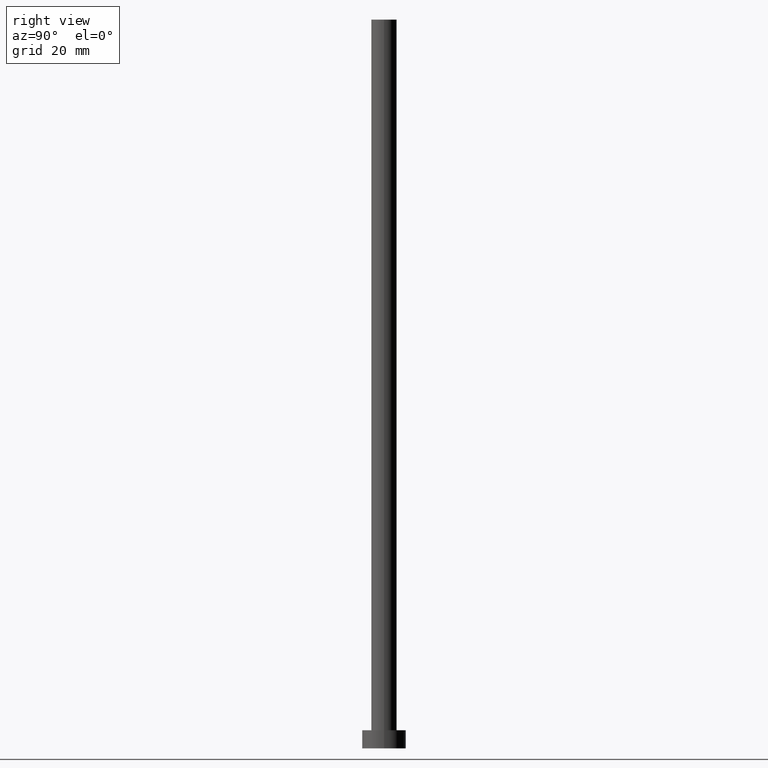
[diagram: clean part render]
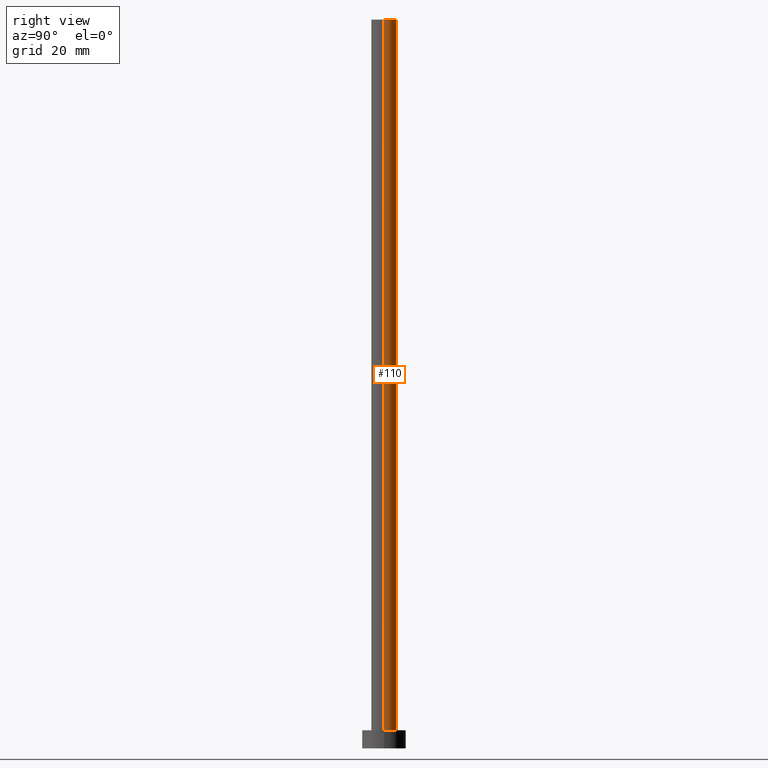
[diagram: same view with one face highlighted and labeled with its STEP entity id]
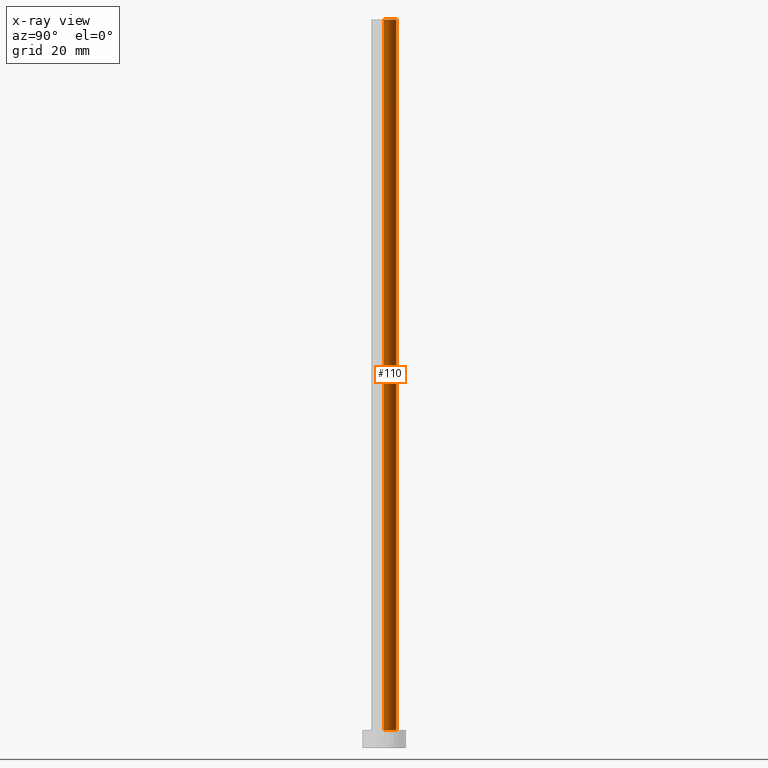
[diagram: x-ray of the same camera — body ghosted, the highlighted face saturated]
A machine part, right view. The second image highlights one B-rep face of the part: STEP entity #110.
The next image is the same camera in x-ray: the body ghosted, the highlighted face saturated — about 0% of this face is hidden behind the body in this view.
In plain terms, the highlighted cylindrical surface (edge-blend (fillet) strip) has radius 3.5 mm, axis along (-0, -0, -1).
Its self-contained STEP definition (entity closure, byte-faithful):
#8 = ORIENTED_EDGE ( 'NONE', *, *, #114, .T. ) ;
#23 = DIRECTION ( 'NONE',  ( 0.000000000000000000, 0.000000000000000000, 1.000000000000000000 ) ) ;
#24 = DIRECTION ( 'NONE',  ( -0.000000000000000000, -0.000000000000000000, -1.000000000000000000 ) ) ;
#35 = DIRECTION ( 'NONE',  ( 1.000000000000000000, 0.000000000000000000, 0.000000000000000000 ) ) ;
#42 = DIRECTION ( 'NONE',  ( -0.000000000000000000, -0.000000000000000000, -1.000000000000000000 ) ) ;
#45 = VECTOR ( 'NONE', #138, 1000.000000000000000 ) ;
#51 = CARTESIAN_POINT ( 'NONE',  ( 0.000000000000000000, 0.000000000000000000, 5.000000000000000000 ) ) ;
#53 = DIRECTION ( 'NONE',  ( 0.000000000000000000, 0.000000000000000000, 1.000000000000000000 ) ) ;
#56 = AXIS2_PLACEMENT_3D ( 'NONE', #245, #23, #225 ) ;
#58 = EDGE_CURVE ( 'NONE', #68, #133, #186, .T. ) ;
#60 = ORIENTED_EDGE ( 'NONE', *, *, #67, .F. ) ;
#61 = CARTESIAN_POINT ( 'NONE',  ( -3.500000000000000000, 0.000000000000000000, 200.0000000000000000 ) ) ;
#67 = EDGE_CURVE ( 'NONE', #131, #133, #219, .T. ) ;
#68 = VERTEX_POINT ( 'NONE', #218 ) ;
#76 = CARTESIAN_POINT ( 'NONE',  ( 3.500000000000000000, 4.286263797015736595E-16, 200.0000000000000000 ) ) ;
#79 = LINE ( 'NONE', #223, #90 ) ;
#83 = ORIENTED_EDGE ( 'NONE', *, *, #58, .T. ) ;
#90 = VECTOR ( 'NONE', #42, 1000.000000000000000 ) ;
#105 = ORIENTED_EDGE ( 'NONE', *, *, #235, .F. ) ;
#110 = ADVANCED_FACE ( 'NONE', ( #118 ), #175, .T. ) ;
#114 = EDGE_CURVE ( 'NONE', #244, #68, #79, .T. ) ;
#118 = FACE_OUTER_BOUND ( 'NONE', #192, .T. ) ;
#131 = VERTEX_POINT ( 'NONE', #61 ) ;
#133 = VERTEX_POINT ( 'NONE', #226 ) ;
#137 = AXIS2_PLACEMENT_3D ( 'NONE', #51, #53, #35 ) ;
#138 = DIRECTION ( 'NONE',  ( -0.000000000000000000, -0.000000000000000000, -1.000000000000000000 ) ) ;
#142 = CARTESIAN_POINT ( 'NONE',  ( 0.000000000000000000, 0.000000000000000000, 200.0000000000000000 ) ) ;
#145 = AXIS2_PLACEMENT_3D ( 'NONE', #142, #24, #205 ) ;
#152 = CIRCLE ( 'NONE', #56, 3.500000000000000000 ) ;
#175 = CYLINDRICAL_SURFACE ( 'NONE', #145, 3.500000000000000000 ) ;
#186 = CIRCLE ( 'NONE', #137, 3.500000000000000000 ) ;
#192 = EDGE_LOOP ( 'NONE', ( #105, #8, #83, #60 ) ) ;
#204 = CARTESIAN_POINT ( 'NONE',  ( -3.500000000000000000, 0.000000000000000000, 200.0000000000000000 ) ) ;
#205 = DIRECTION ( 'NONE',  ( -1.000000000000000000, 0.000000000000000000, 0.000000000000000000 ) ) ;
#218 = CARTESIAN_POINT ( 'NONE',  ( 3.500000000000000000, 4.286263797015736595E-16, 5.000000000000000000 ) ) ;
#219 = LINE ( 'NONE', #204, #45 ) ;
#223 = CARTESIAN_POINT ( 'NONE',  ( 3.500000000000000000, 4.286263797015736595E-16, 200.0000000000000000 ) ) ;
#225 = DIRECTION ( 'NONE',  ( 1.000000000000000000, 0.000000000000000000, 0.000000000000000000 ) ) ;
#226 = CARTESIAN_POINT ( 'NONE',  ( -3.500000000000000000, 0.000000000000000000, 5.000000000000000000 ) ) ;
#235 = EDGE_CURVE ( 'NONE', #244, #131, #152, .T. ) ;
#244 = VERTEX_POINT ( 'NONE', #76 ) ;
#245 = CARTESIAN_POINT ( 'NONE',  ( 0.000000000000000000, 0.000000000000000000, 200.0000000000000000 ) ) ;